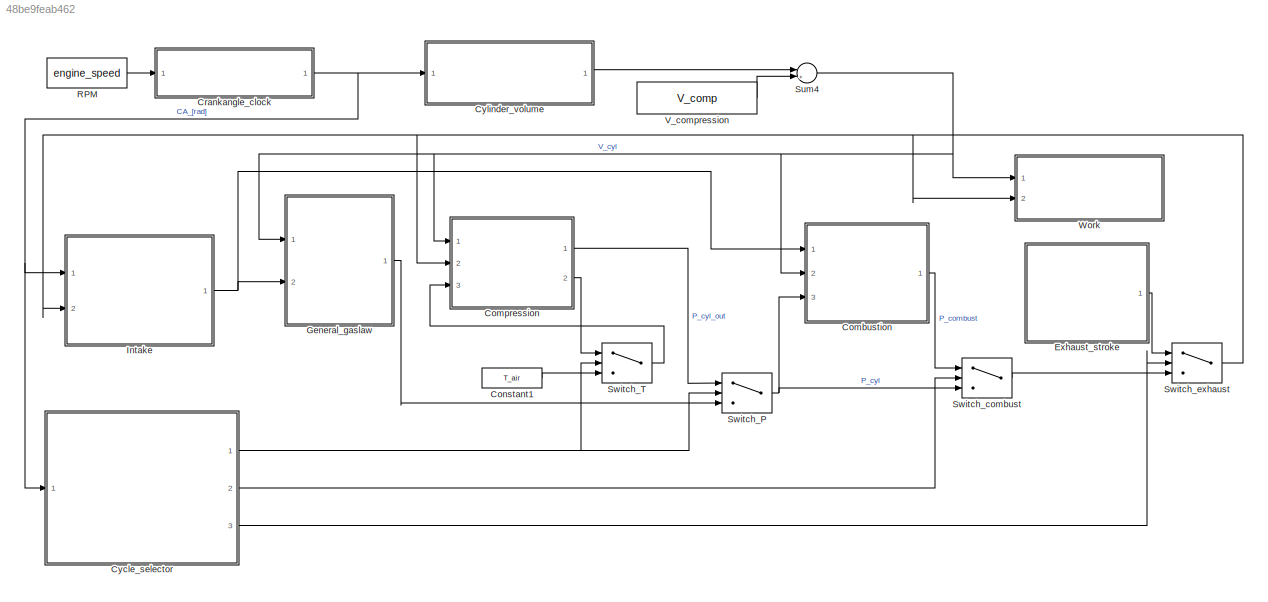
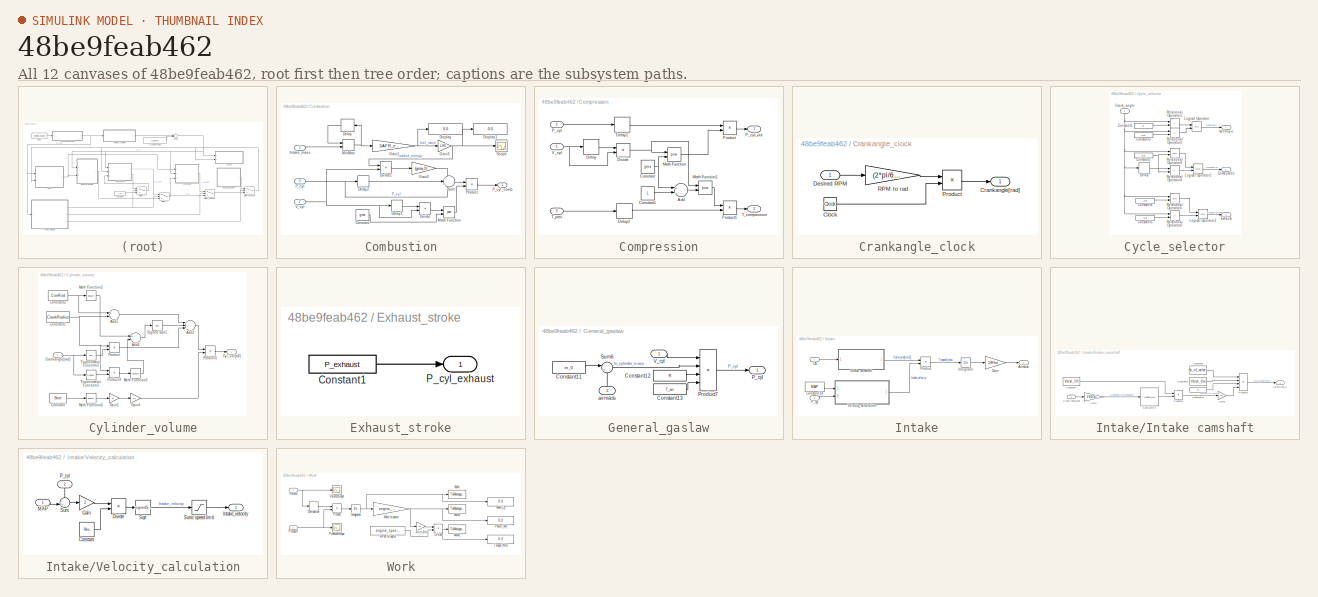
[diagram: thumbnail index - all 12 canvases of the model, root first then tree order]
MODEL slx_48be9feab462
KIND model
CONFIG AbsTol = auto
CONFIG FixedStep = stepsize
CONFIG MaxStep = auto
CONFIG MinStep = auto
CONFIG RelTol = 1e-3
CONFIG SampleTimeConstraint = Unconstrained
CONFIG Solver = ode3
CONFIG SolverMode = Auto
CONFIG SolverName = ode3
CONFIG StartTime = 0.0
CONFIG StopTime = 1*sim_time
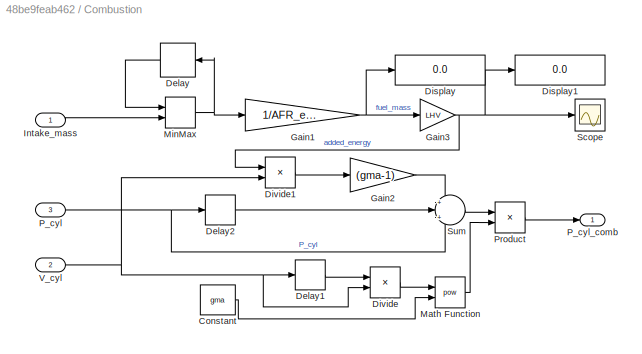
BLOCK [SubSystem] Combustion
  Ports = [3, 1]
  RequestExecContextInheritance = off
  Variant = off
BLOCK [Constant] Combustion/Constant
  Value = gma
BLOCK [Delay] Combustion/Delay
  DelayLength = 1
  InitialCondition = 0
  InputPortMap = u0
  Ports = [1, 1]
BLOCK [Delay] Combustion/Delay1
  DelayLength = 1
  InputPortMap = u0
  Ports = [1, 1]
BLOCK [Delay] Combustion/Delay2
  DelayLength = 1
  InputPortMap = u0
  Ports = [1, 1]
BLOCK [Display] Combustion/Display
  Decimation = 1
  Ports = [1]
BLOCK [Display] Combustion/Display1
  Decimation = 1
  Ports = [1]
BLOCK [Product] Combustion/Divide
  InputSameDT = off
  Inputs = */
  OutDataTypeStr = Inherit: Inherit via internal rule
  Ports = [2, 1]
  RndMeth = Floor
  SaturateOnIntegerOverflow = off
BLOCK [Product] Combustion/Divide1
  InputSameDT = off
  Inputs = */
  OutDataTypeStr = Inherit: Inherit via internal rule
  Ports = [2, 1]
  RndMeth = Floor
  SaturateOnIntegerOverflow = off
BLOCK [Gain] Combustion/Gain1
  Gain = 1/AFR_effective
  OutDataTypeStr = Inherit: Inherit via internal rule
  ParamDataTypeStr = Inherit: Inherit via internal rule
  SaturateOnIntegerOverflow = off
BLOCK [Gain] Combustion/Gain2
  Gain = (gma-1)
  OutDataTypeStr = Inherit: Inherit via internal rule
  ParamDataTypeStr = Inherit: Inherit via internal rule
  SaturateOnIntegerOverflow = off
BLOCK [Gain] Combustion/Gain3
  Gain = LHV
  OutDataTypeStr = Inherit: Inherit via internal rule
  ParamDataTypeStr = Inherit: Inherit via internal rule
  SaturateOnIntegerOverflow = off
BLOCK [Inport] Combustion/Intake_mass
  IconDisplay = Port number
BLOCK [Math] Combustion/Math Function
  Operator = pow
  Ports = [2, 1]
BLOCK [MinMax] Combustion/MinMax
  Function = max
  InputSameDT = off
  Inputs = 2
  Ports = [2, 1]
  SaturateOnIntegerOverflow = off
BLOCK [Inport] Combustion/P_cyl
  IconDisplay = Port number
  Port = 3
BLOCK [Outport] Combustion/P_cyl_comb
  IconDisplay = Port number
BLOCK [Product] Combustion/Product
  InputSameDT = off
  OutDataTypeStr = Inherit: Inherit via internal rule
  Ports = [2, 1]
  RndMeth = Floor
  SaturateOnIntegerOverflow = off
BLOCK [Scope] Combustion/Scope
  Ports = [1]
  ScopeSpecificationString = Simulink.scopes.TimeScopeBlockCfg('CurrentConfiguration', extmgr.ConfigurationSet(extmgr.Configuration('Core','General UI',true),extmgr.Configuration('Core','Source UI',true),extmgr.Configuration('Sources','WiredSimulink',true,'DataLoggingVariableName','added_energy','DataLogging',true,'DataLoggingLimitDataPoints',true,'DataLoggingMaxPoints','1','DataLoggingSaveFormat','Array'),extmgr.Configuratio...<+1487ch>
BLOCK [Sum] Combustion/Sum
  IconShape = round
  InputSameDT = off
  Inputs = +|+|-
  OutDataTypeStr = Inherit: Inherit via internal rule
  Ports = [3, 1]
  SaturateOnIntegerOverflow = off
BLOCK [Inport] Combustion/V_cyl
  IconDisplay = Port number
  Port = 2
BLOCK [SubSystem] Compression
  Ports = [3, 2]
  RequestExecContextInheritance = off
  Variant = off
BLOCK [Sum] Compression/Add
  InputSameDT = off
  Inputs = +-
  OutDataTypeStr = Inherit: Inherit via internal rule
  Ports = [2, 1]
  SaturateOnIntegerOverflow = off
BLOCK [Constant] Compression/Constant
  Value = gma
BLOCK [Constant] Compression/Constant1
BLOCK [Delay] Compression/Delay
  DelayLength = 1
  InitialCondition = 0
  InputPortMap = u0
  Ports = [1, 1]
BLOCK [Delay] Compression/Delay1
  DelayLength = 1
  InputPortMap = u0
  Ports = [1, 1]
BLOCK [Delay] Compression/Delay2
  DelayLength = 1
  InputPortMap = u0
  Ports = [1, 1]
BLOCK [Product] Compression/Divide
  InputSameDT = off
  Inputs = */
  OutDataTypeStr = Inherit: Inherit via internal rule
  Ports = [2, 1]
  RndMeth = Floor
  SaturateOnIntegerOverflow = off
BLOCK [Math] Compression/Math Function
  Operator = pow
  Ports = [2, 1]
BLOCK [Math] Compression/Math Function1
  Operator = pow
  Ports = [2, 1]
BLOCK [Inport] Compression/P_cyl
  IconDisplay = Port number
  Port = 2
BLOCK [Outport] Compression/P_cyl_out
  IconDisplay = Port number
BLOCK [Product] Compression/Product
  InputSameDT = off
  OutDataTypeStr = Inherit: Inherit via internal rule
  Ports = [2, 1]
  RndMeth = Floor
  SaturateOnIntegerOverflow = off
BLOCK [Product] Compression/Product1
  InputSameDT = off
  OutDataTypeStr = Inherit: Inherit via internal rule
  Ports = [2, 1]
  RndMeth = Floor
  SaturateOnIntegerOverflow = off
BLOCK [Outport] Compression/T_compression
  IconDisplay = Port number
  Port = 2
BLOCK [Inport] Compression/T_prev
  IconDisplay = Port number
  Port = 3
BLOCK [Inport] Compression/V_cyl
  IconDisplay = Port number
BLOCK [Constant] Constant1
  Value = T_air
BLOCK [SubSystem] Crankangle_clock
  Ports = [1, 1]
  RequestExecContextInheritance = off
  Variant = off
BLOCK [Clock] Crankangle_clock/Clock
BLOCK [Outport] Crankangle_clock/Crankangle[rad]
  IconDisplay = Port number
BLOCK [Inport] Crankangle_clock/Desired RPM
  IconDisplay = Port number
BLOCK [Product] Crankangle_clock/Product
  InputSameDT = off
  OutDataTypeStr = Inherit: Inherit via internal rule
  Ports = [2, 1]
  RndMeth = Floor
  SaturateOnIntegerOverflow = off
BLOCK [Gain] Crankangle_clock/RPM to rad
  Gain = (2*pi/60)
  OutDataTypeStr = Inherit: Inherit via internal rule
  ParamDataTypeStr = Inherit: Inherit via internal rule
  SaturateOnIntegerOverflow = off
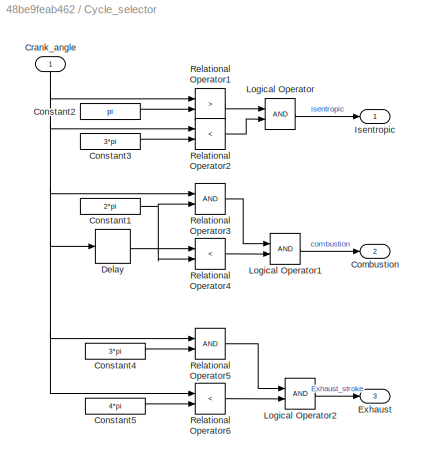
BLOCK [SubSystem] Cycle_selector
  Ports = [1, 3]
  RequestExecContextInheritance = off
  Variant = off
BLOCK [Outport] Cycle_selector/Combustion
  IconDisplay = Port number
  Port = 2
BLOCK [Constant] Cycle_selector/Constant1
  Value = 2*pi
BLOCK [Constant] Cycle_selector/Constant2
  Value = pi
BLOCK [Constant] Cycle_selector/Constant3
  Value = 3*pi
BLOCK [Constant] Cycle_selector/Constant4
  Value = 3*pi
BLOCK [Constant] Cycle_selector/Constant5
  Value = 4*pi
BLOCK [Inport] Cycle_selector/Crank_angle
  IconDisplay = Port number
BLOCK [Delay] Cycle_selector/Delay
  DelayLength = 1
  InitialCondition = P_0
  InputPortMap = u0
  Ports = [1, 1]
BLOCK [Outport] Cycle_selector/Exhaust
  IconDisplay = Port number
  Port = 3
BLOCK [Outport] Cycle_selector/Isentropic
  IconDisplay = Port number
BLOCK [Logic] Cycle_selector/Logical Operator
  AllPortsSameDT = off
  OutDataTypeStr = boolean
  Ports = [2, 1]
BLOCK [Logic] Cycle_selector/Logical Operator1
  AllPortsSameDT = off
  OutDataTypeStr = boolean
  Ports = [2, 1]
BLOCK [Logic] Cycle_selector/Logical Operator2
  AllPortsSameDT = off
  OutDataTypeStr = boolean
  Ports = [2, 1]
BLOCK [RelationalOperator] Cycle_selector/Relational Operator1
  InputSameDT = off
  Operator = >
  OutDataTypeStr = boolean
  Ports = [2, 1]
BLOCK [RelationalOperator] Cycle_selector/Relational Operator2
  InputSameDT = off
  Operator = <
  OutDataTypeStr = boolean
  Ports = [2, 1]
BLOCK [RelationalOperator] Cycle_selector/Relational Operator3
  InputSameDT = off
  OutDataTypeStr = boolean
  Ports = [2, 1]
BLOCK [RelationalOperator] Cycle_selector/Relational Operator4
  InputSameDT = off
  Operator = <
  OutDataTypeStr = boolean
  Ports = [2, 1]
BLOCK [RelationalOperator] Cycle_selector/Relational Operator5
  InputSameDT = off
  OutDataTypeStr = boolean
  Ports = [2, 1]
BLOCK [RelationalOperator] Cycle_selector/Relational Operator6
  InputSameDT = off
  Operator = <
  OutDataTypeStr = boolean
  Ports = [2, 1]
BLOCK [SubSystem] Cylinder_volume
  Ports = [1, 1]
  RequestExecContextInheritance = off
  Variant = off
BLOCK [Sum] Cylinder_volume/Add2
  InputSameDT = off
  Inputs = +--
  OutDataTypeStr = Inherit: Inherit via internal rule
  Ports = [3, 1]
  SaturateOnIntegerOverflow = off
BLOCK [Sum] Cylinder_volume/Add4
  InputSameDT = off
  Inputs = +-
  OutDataTypeStr = Inherit: Inherit via internal rule
  Ports = [2, 1]
  SaturateOnIntegerOverflow = off
BLOCK [Sum] Cylinder_volume/Add5
  InputSameDT = off
  OutDataTypeStr = Inherit: Inherit via internal rule
  Ports = [2, 1]
  SaturateOnIntegerOverflow = off
BLOCK [Constant] Cylinder_volume/Constant
  Value = Bore
BLOCK [Constant] Cylinder_volume/Constant1
  Value = CrankRadius
BLOCK [Constant] Cylinder_volume/Constant2
  Value = ConRod
BLOCK [Inport] Cylinder_volume/Crankangle[rad]
  IconDisplay = Port number
BLOCK [Outport] Cylinder_volume/Cyl_vol[m3]
  IconDisplay = Port number
BLOCK [Gain] Cylinder_volume/Gain4
  Gain = 1/4
  OutDataTypeStr = Inherit: Inherit via internal rule
  ParamDataTypeStr = Inherit: Inherit via internal rule
  SaturateOnIntegerOverflow = off
BLOCK [Gain] Cylinder_volume/Gain5
  Gain = pi
  OutDataTypeStr = Inherit: Inherit via internal rule
  ParamDataTypeStr = Inherit: Inherit via internal rule
  SaturateOnIntegerOverflow = off
BLOCK [Math] Cylinder_volume/Math Function2
  Operator = square
  Ports = [1, 1]
BLOCK [Math] Cylinder_volume/Math Function5
  Operator = square
  Ports = [1, 1]
BLOCK [Math] Cylinder_volume/Math Function6
  Operator = square
  Ports = [1, 1]
BLOCK [Product] Cylinder_volume/Product
  InputSameDT = off
  OutDataTypeStr = Inherit: Inherit via internal rule
  Ports = [2, 1]
  RndMeth = Floor
  SaturateOnIntegerOverflow = off
BLOCK [Product] Cylinder_volume/Product4
  InputSameDT = off
  OutDataTypeStr = Inherit: Inherit via internal rule
  Ports = [2, 1]
  RndMeth = Floor
  SaturateOnIntegerOverflow = off
BLOCK [Product] Cylinder_volume/Product5
  InputSameDT = off
  OutDataTypeStr = Inherit: Inherit via internal rule
  Ports = [2, 1]
  RndMeth = Floor
  SaturateOnIntegerOverflow = off
BLOCK [Sqrt] Cylinder_volume/Signed Sqrt1
BLOCK [Trigonometry] Cylinder_volume/Trigonometric Function2
  Operator = cos
  Ports = [1, 1]
BLOCK [Trigonometry] Cylinder_volume/Trigonometric Function3
  Ports = [1, 1]
BLOCK [SubSystem] Exhaust_stroke
  Ports = [0, 1]
  RequestExecContextInheritance = off
  Variant = off
BLOCK [Constant] Exhaust_stroke/Constant1
  Value = P_exhaust
BLOCK [Outport] Exhaust_stroke/P_cyl_exhaust
  IconDisplay = Port number
BLOCK [SubSystem] General_gaslaw
  Ports = [2, 1]
  RequestExecContextInheritance = off
  Variant = off
BLOCK [Constant] General_gaslaw/Constant11
  Value = m_0
BLOCK [Constant] General_gaslaw/Constant12
  Value = R
BLOCK [Constant] General_gaslaw/Constant13
  Value = T_air
BLOCK [Outport] General_gaslaw/P_cyl
  IconDisplay = Port number
BLOCK [Product] General_gaslaw/Product7
  InputSameDT = off
  Inputs = /***
  OutDataTypeStr = Inherit: Inherit via internal rule
  Ports = [4, 1]
  SaturateOnIntegerOverflow = off
BLOCK [Sum] General_gaslaw/Sum6
  IconShape = round
  InputSameDT = off
  Inputs = |++
  OutDataTypeStr = Inherit: Inherit via internal rule
  Ports = [2, 1]
  SaturateOnIntegerOverflow = off
BLOCK [Inport] General_gaslaw/V_cyl
  IconDisplay = Port number
BLOCK [Inport] General_gaslaw/airmass
  IconDisplay = Port number
  Port = 2
BLOCK [SubSystem] Intake
  Ports = [2, 1]
  RequestExecContextInheritance = off
  Variant = off
BLOCK [Outport] Intake/Airmass
  IconDisplay = Port number
BLOCK [Inport] Intake/CA
  IconDisplay = Port number
BLOCK [Constant] Intake/Constant14
  Value = MAP
BLOCK [Gain] Intake/Gain
  Gain = 1/Rho
  OutDataTypeStr = Inherit: Inherit via internal rule
  ParamDataTypeStr = Inherit: Inherit via internal rule
  SaturateOnIntegerOverflow = off
BLOCK [SubSystem] Intake/Intake camshaft
  Ports = [1, 1]
  RequestExecContextInheritance = off
  Variant = off
BLOCK [Lookup_n-D] Intake/Intake camshaft/Cam_profile
  BreakpointsForDimension1 = [0,10,20,30,40,50,60,70,80,90,100,110,120,130,140,150,160,170,180,190,200,210]
  ExtrapMethod = Clip
  NumberOfTableDimensions = 1
  Ports = [1, 1]
  RndMeth = Simplest
  Table = [0,0.05,0.1,0.2,0.3,0.5,0.65,0.8,0.9,0.95,1,1,0.95,0.9,0.8,0.65,0.5,0.3,0.2,0.1,0.05,0]
  UseLastTableValue = on
BLOCK [Constant] Intake/Intake camshaft/Constant10
  Value = pi
BLOCK [Constant] Intake/Intake camshaft/Constant7
  Value = Valve_lift
BLOCK [Constant] Intake/Intake camshaft/Constant8
  Value = Nr_of_valves
BLOCK [Constant] Intake/Intake camshaft/Constant9
  Value = Valve_dia
BLOCK [Inport] Intake/Intake camshaft/CrankAngle[rad]
  IconDisplay = Port number
BLOCK [Gain] Intake/Intake camshaft/Gain
  Gain = 180/pi
  OutDataTypeStr = Inherit: Inherit via internal rule
  ParamDataTypeStr = Inherit: Inherit via internal rule
  SaturateOnIntegerOverflow = off
BLOCK [Gain] Intake/Intake camshaft/Gain2
  Gain = Cd
  OutDataTypeStr = Inherit: Inherit via internal rule
  ParamDataTypeStr = Inherit: Inherit via internal rule
  SaturateOnIntegerOverflow = off
BLOCK [Product] Intake/Intake camshaft/Product5
  InputSameDT = off
  OutDataTypeStr = Inherit: Inherit via internal rule
  Ports = [2, 1]
  SaturateOnIntegerOverflow = off
BLOCK [Product] Intake/Intake camshaft/Product6
  InputSameDT = off
  Inputs = 4
  OutDataTypeStr = Inherit: Inherit via internal rule
  Ports = [4, 1]
  SaturateOnIntegerOverflow = off
BLOCK [Outport] Intake/Intake camshaft/ValveArea_In
  IconDisplay = Port number
BLOCK [Integrator] Intake/Integrator
  Ports = [1, 1]
BLOCK [Inport] Intake/P_cyl
  IconDisplay = Port number
  Port = 2
BLOCK [Product] Intake/Product
  InputSameDT = off
  OutDataTypeStr = Inherit: Inherit via internal rule
  Ports = [2, 1]
  RndMeth = Floor
  SaturateOnIntegerOverflow = off
BLOCK [SubSystem] Intake/Velocity_calculation
  Ports = [2, 1]
  RequestExecContextInheritance = off
  Variant = off
BLOCK [Constant] Intake/Velocity_calculation/Constant
  Value = Rho
BLOCK [Product] Intake/Velocity_calculation/Divide
  InputSameDT = off
  Inputs = */
  OutDataTypeStr = Inherit: Inherit via internal rule
  Ports = [2, 1]
  RndMeth = Floor
  SaturateOnIntegerOverflow = off
BLOCK [Gain] Intake/Velocity_calculation/Gain
  Gain = 2
  OutDataTypeStr = Inherit: Inherit via internal rule
  ParamDataTypeStr = Inherit: Inherit via internal rule
  SaturateOnIntegerOverflow = off
BLOCK [Outport] Intake/Velocity_calculation/Intake_velocity
  IconDisplay = Port number
BLOCK [Inport] Intake/Velocity_calculation/MAP
  IconDisplay = Port number
BLOCK [Inport] Intake/Velocity_calculation/P_cyl
  IconDisplay = Port number
  Port = 2
BLOCK [Saturate] Intake/Velocity_calculation/Sonic speed limit
  InputPortMap = u0
  LowerLimit = -V_sonic
  Ports = [1, 1]
  UpperLimit = V_sonic
BLOCK [Sqrt] Intake/Velocity_calculation/Sqrt
  Operator = signedSqrt
BLOCK [Sum] Intake/Velocity_calculation/Sum
  IconShape = round
  InputSameDT = off
  Inputs = -+|
  OutDataTypeStr = Inherit: Inherit via internal rule
  Ports = [2, 1]
  SaturateOnIntegerOverflow = off
BLOCK [Constant] RPM
  Value = engine_speed
BLOCK [Sum] Sum4
  IconShape = round
  InputSameDT = off
  Inputs = |++
  OutDataTypeStr = Inherit: Inherit via internal rule
  Ports = [2, 1]
  SaturateOnIntegerOverflow = off
BLOCK [Switch] Switch_P
  Criteria = u2 > Threshold
  InputSameDT = off
  SaturateOnIntegerOverflow = off
BLOCK [Switch] Switch_T
  Criteria = u2 > Threshold
  InputSameDT = off
  SaturateOnIntegerOverflow = off
BLOCK [Switch] Switch_combust
  Criteria = u2 > Threshold
  InputSameDT = off
  SaturateOnIntegerOverflow = off
BLOCK [Switch] Switch_exhaust
  Criteria = u2 > Threshold
  InputSameDT = off
  SaturateOnIntegerOverflow = off
BLOCK [Constant] V_compression
  Value = V_comp
BLOCK [SubSystem] Work
  Ports = [2]
  RequestExecContextInheritance = off
  Variant = off
BLOCK [Derivative] Work/Derivative
BLOCK [Product] Work/Divide
  InputSameDT = off
  Inputs = */
  OutDataTypeStr = Inherit: Inherit via internal rule
  Ports = [2, 1]
  RndMeth = Floor
  SaturateOnIntegerOverflow = off
BLOCK [Integrator] Work/Integrator
  Ports = [1, 1]
BLOCK [Gain] Work/J//s to J//m
  Gain = 60
  OutDataTypeStr = Inherit: Inherit via internal rule
  ParamDataTypeStr = Inherit: Inherit via internal rule
  SaturateOnIntegerOverflow = off
BLOCK [Display] Work/Power [W]
  Decimation = 1
  Ports = [1]
BLOCK [Inport] Work/Pressure
  IconDisplay = Port number
  Port = 2
BLOCK [Scope] Work/PressureScope
  Ports = [1]
  ScopeSpecificationString = Simulink.scopes.TimeScopeBlockCfg('CurrentConfiguration', extmgr.ConfigurationSet(extmgr.Configuration('Core','General UI',true),extmgr.Configuration('Core','Source UI',true),extmgr.Configuration('Sources','WiredSimulink',true,'DataLoggingVariableName','Pressure','DataLogging',true,'DataLoggingSaveFormat','Array'),extmgr.Configuration('Visuals','Time Domain',true,'SerializedDisplays',{struct('MinY...<+1458ch>
BLOCK [Product] Work/Product
  InputSameDT = off
  OutDataTypeStr = Inherit: Inherit via internal rule
  Ports = [2, 1]
  RndMeth = Floor
  SaturateOnIntegerOverflow = off
BLOCK [Constant] Work/RPM to rad//m
  Value = engine_speed*2*pi
BLOCK [Display] Work/Torque [Nm]
  Decimation = 1
  Ports = [1]
BLOCK [Inport] Work/Volume
  IconDisplay = Port number
BLOCK [Scope] Work/VolumeScope
  Ports = [1]
  ScopeSpecificationString = Simulink.scopes.TimeScopeBlockCfg('CurrentConfiguration', extmgr.ConfigurationSet(extmgr.Configuration('Core','General UI',true),extmgr.Configuration('Core','Source UI',true),extmgr.Configuration('Sources','WiredSimulink',true,'DataLoggingVariableName','Volume','DataLogging',true,'DataLoggingSaveFormat','Array'),extmgr.Configuration('Visuals','Time Domain',true,'SerializedDisplays',{struct('MinYLi...<+1412ch>
BLOCK [ToWorkspace] Work/Work
  FixptAsFi = on
  MaxDataPoints = 1
  Ports = [1]
  SampleTime = -1
  Save2DSignal = 3-D array (concatenate along third dimension)
  VariableName = Work
BLOCK [Display] Work/Work [J]
  Decimation = 1
  Ports = [1]
BLOCK [Gain] Work/Work to power
  Gain = engine_speed/(2*60)
  OutDataTypeStr = Inherit: Inherit via internal rule
  ParamDataTypeStr = Inherit: Inherit via internal rule
  SaturateOnIntegerOverflow = off
BLOCK [ToWorkspace] Work/Work1
  FixptAsFi = on
  MaxDataPoints = 1
  Ports = [1]
  SampleTime = -1
  Save2DSignal = 3-D array (concatenate along third dimension)
  VariableName = Power
BLOCK [ToWorkspace] Work/Work2
  FixptAsFi = on
  MaxDataPoints = 1
  Ports = [1]
  SampleTime = -1
  Save2DSignal = 3-D array (concatenate along third dimension)
  VariableName = Torque
LINE Combustion/Constant:1 -> Combustion/Math Function:2
LINE Combustion/Delay1:1 -> Combustion/Divide:1
LINE Combustion/Delay2:1 -> Combustion/Sum:2
LINE Combustion/Delay:1 -> Combustion/MinMax:1
LINE Combustion/Divide1:1 -> Combustion/Gain2:1
LINE Combustion/Divide:1 -> Combustion/Math Function:1
NET Combustion/Gain1:1 -> Combustion/Display:1, Combustion/Gain3:1
LINE Combustion/Gain2:1 -> Combustion/Sum:1
NET Combustion/Gain3:1 -> Combustion/Display1:1, Combustion/Divide1:1, Combustion/Scope:1
LINE Combustion/Intake_mass:1 -> Combustion/MinMax:2
LINE Combustion/Math Function:1 -> Combustion/Product:2
NET Combustion/MinMax:1 -> Combustion/Delay:1, Combustion/Gain1:1
NET Combustion/P_cyl:1 -> Combustion/Delay2:1, Combustion/Sum:3
LINE Combustion/Product:1 -> Combustion/P_cyl_comb:1
LINE Combustion/Sum:1 -> Combustion/Product:1
NET Combustion/V_cyl:1 -> Combustion/Delay1:1, Combustion/Divide1:2, Combustion/Divide:2
LINE Combustion:1 -> Switch_combust:1
LINE Compression/Add:1 -> Compression/Math Function1:2
LINE Compression/Constant1:1 -> Compression/Add:2
NET Compression/Constant:1 -> Compression/Add:1, Compression/Math Function:2
LINE Compression/Delay1:1 -> Compression/Product:1
LINE Compression/Delay2:1 -> Compression/Product1:2
LINE Compression/Delay:1 -> Compression/Divide:1
NET Compression/Divide:1 -> Compression/Math Function1:1, Compression/Math Function:1
LINE Compression/Math Function1:1 -> Compression/Product1:1
LINE Compression/Math Function:1 -> Compression/Product:2
LINE Compression/P_cyl:1 -> Compression/Delay1:1
LINE Compression/Product1:1 -> Compression/T_compression:1
LINE Compression/Product:1 -> Compression/P_cyl_out:1
LINE Compression/T_prev:1 -> Compression/Delay2:1
NET Compression/V_cyl:1 -> Compression/Delay:1, Compression/Divide:2
LINE Compression:1 -> Switch_P:1
LINE Compression:2 -> Switch_T:1
LINE Constant1:1 -> Switch_T:3
LINE Crankangle_clock/Clock:1 -> Crankangle_clock/Product:2
LINE Crankangle_clock/Desired RPM:1 -> Crankangle_clock/RPM to rad:1
LINE Crankangle_clock/Product:1 -> Crankangle_clock/Crankangle[rad]:1
LINE Crankangle_clock/RPM to rad:1 -> Crankangle_clock/Product:1
NET Crankangle_clock:1 -> Cycle_selector:1, Cylinder_volume:1, Intake:1
NET Cycle_selector/Constant1:1 -> Cycle_selector/Relational Operator3:2, Cycle_selector/Relational Operator4:2
LINE Cycle_selector/Constant2:1 -> Cycle_selector/Relational Operator1:2
LINE Cycle_selector/Constant3:1 -> Cycle_selector/Relational Operator2:2
LINE Cycle_selector/Constant4:1 -> Cycle_selector/Relational Operator5:2
LINE Cycle_selector/Constant5:1 -> Cycle_selector/Relational Operator6:2
NET Cycle_selector/Crank_angle:1 -> Cycle_selector/Delay:1, Cycle_selector/Relational Operator1:1, Cycle_selector/Relational Operator2:1, Cycle_selector/Relational Operator3:1, Cycle_selector/Relational Operator5:1, Cycle_selector/Relational Operator6:1
LINE Cycle_selector/Delay:1 -> Cycle_selector/Relational Operator4:1
LINE Cycle_selector/Logical Operator1:1 -> Cycle_selector/Combustion:1
LINE Cycle_selector/Logical Operator2:1 -> Cycle_selector/Exhaust:1
LINE Cycle_selector/Logical Operator:1 -> Cycle_selector/Isentropic:1
LINE Cycle_selector/Relational Operator1:1 -> Cycle_selector/Logical Operator:1
LINE Cycle_selector/Relational Operator2:1 -> Cycle_selector/Logical Operator:2
LINE Cycle_selector/Relational Operator3:1 -> Cycle_selector/Logical Operator1:1
LINE Cycle_selector/Relational Operator4:1 -> Cycle_selector/Logical Operator1:2
LINE Cycle_selector/Relational Operator5:1 -> Cycle_selector/Logical Operator2:1
LINE Cycle_selector/Relational Operator6:1 -> Cycle_selector/Logical Operator2:2
NET Cycle_selector:1 -> Switch_P:2, Switch_T:2
LINE Cycle_selector:2 -> Switch_combust:2
LINE Cycle_selector:3 -> Switch_exhaust:2
LINE Cylinder_volume/Add2:1 -> Cylinder_volume/Product5:1
LINE Cylinder_volume/Add4:1 -> Cylinder_volume/Signed Sqrt1:1
LINE Cylinder_volume/Add5:1 -> Cylinder_volume/Add2:1
NET Cylinder_volume/Constant1:1 -> Cylinder_volume/Add5:2, Cylinder_volume/Product4:1, Cylinder_volume/Product:1
NET Cylinder_volume/Constant2:1 -> Cylinder_volume/Add5:1, Cylinder_volume/Math Function2:1
LINE Cylinder_volume/Constant:1 -> Cylinder_volume/Math Function6:1
NET Cylinder_volume/Crankangle[rad]:1 -> Cylinder_volume/Trigonometric Function2:1, Cylinder_volume/Trigonometric Function3:1
LINE Cylinder_volume/Gain4:1 -> Cylinder_volume/Product5:2
LINE Cylinder_volume/Gain5:1 -> Cylinder_volume/Gain4:1
LINE Cylinder_volume/Math Function2:1 -> Cylinder_volume/Add4:1
LINE Cylinder_volume/Math Function5:1 -> Cylinder_volume/Add4:2
LINE Cylinder_volume/Math Function6:1 -> Cylinder_volume/Gain5:1
LINE Cylinder_volume/Product4:1 -> Cylinder_volume/Math Function5:1
LINE Cylinder_volume/Product5:1 -> Cylinder_volume/Cyl_vol[m3]:1
LINE Cylinder_volume/Product:1 -> Cylinder_volume/Add2:3
LINE Cylinder_volume/Signed Sqrt1:1 -> Cylinder_volume/Add2:2
LINE Cylinder_volume/Trigonometric Function2:1 -> Cylinder_volume/Product:2
LINE Cylinder_volume/Trigonometric Function3:1 -> Cylinder_volume/Product4:2
LINE Cylinder_volume:1 -> Sum4:1
LINE Exhaust_stroke/Constant1:1 -> Exhaust_stroke/P_cyl_exhaust:1
LINE Exhaust_stroke:1 -> Switch_exhaust:1
LINE General_gaslaw/Constant11:1 -> General_gaslaw/Sum6:1
LINE General_gaslaw/Constant12:1 -> General_gaslaw/Product7:3
LINE General_gaslaw/Constant13:1 -> General_gaslaw/Product7:4
LINE General_gaslaw/Product7:1 -> General_gaslaw/P_cyl:1
LINE General_gaslaw/Sum6:1 -> General_gaslaw/Product7:2
LINE General_gaslaw/V_cyl:1 -> General_gaslaw/Product7:1
LINE General_gaslaw/airmass:1 -> General_gaslaw/Sum6:2
LINE General_gaslaw:1 -> Switch_P:3
LINE Intake/CA:1 -> Intake/Intake camshaft:1
LINE Intake/Constant14:1 -> Intake/Velocity_calculation:1
LINE Intake/Gain:1 -> Intake/Airmass:1
LINE Intake/Intake camshaft/Cam_profile:1 -> Intake/Intake camshaft/Product5:2
LINE Intake/Intake camshaft/Constant10:1 -> Intake/Intake camshaft/Product6:3
LINE Intake/Intake camshaft/Constant7:1 -> Intake/Intake camshaft/Product5:1
LINE Intake/Intake camshaft/Constant8:1 -> Intake/Intake camshaft/Product6:1
LINE Intake/Intake camshaft/Constant9:1 -> Intake/Intake camshaft/Product6:2
LINE Intake/Intake camshaft/CrankAngle[rad]:1 -> Intake/Intake camshaft/Gain:1
LINE Intake/Intake camshaft/Gain2:1 -> Intake/Intake camshaft/Product6:4
LINE Intake/Intake camshaft/Gain:1 -> Intake/Intake camshaft/Cam_profile:1
LINE Intake/Intake camshaft/Product5:1 -> Intake/Intake camshaft/Gain2:1
LINE Intake/Intake camshaft/Product6:1 -> Intake/Intake camshaft/ValveArea_In:1
LINE Intake/Intake camshaft:1 -> Intake/Product:1
LINE Intake/Integrator:1 -> Intake/Gain:1
LINE Intake/P_cyl:1 -> Intake/Velocity_calculation:2
LINE Intake/Product:1 -> Intake/Integrator:1
LINE Intake/Velocity_calculation/Constant:1 -> Intake/Velocity_calculation/Divide:2
LINE Intake/Velocity_calculation/Divide:1 -> Intake/Velocity_calculation/Sqrt:1
LINE Intake/Velocity_calculation/Gain:1 -> Intake/Velocity_calculation/Divide:1
LINE Intake/Velocity_calculation/MAP:1 -> Intake/Velocity_calculation/Sum:2
LINE Intake/Velocity_calculation/P_cyl:1 -> Intake/Velocity_calculation/Sum:1
LINE Intake/Velocity_calculation/Sonic speed limit:1 -> Intake/Velocity_calculation/Intake_velocity:1
LINE Intake/Velocity_calculation/Sqrt:1 -> Intake/Velocity_calculation/Sonic speed limit:1
LINE Intake/Velocity_calculation/Sum:1 -> Intake/Velocity_calculation/Gain:1
LINE Intake/Velocity_calculation:1 -> Intake/Product:2
NET Intake:1 -> Combustion:1, General_gaslaw:2
LINE RPM:1 -> Crankangle_clock:1
NET Sum4:1 -> Combustion:2, Compression:1, General_gaslaw:1, Work:1
NET Switch_P:1 -> Combustion:3, Switch_combust:3
LINE Switch_T:1 -> Compression:3
LINE Switch_combust:1 -> Switch_exhaust:3
NET Switch_exhaust:1 -> Compression:2, Intake:2, Work:2
LINE V_compression:1 -> Sum4:2
LINE Work/Derivative:1 -> Work/Product:1
NET Work/Divide:1 -> Work/Torque [Nm]:1, Work/Work2:1
NET Work/Integrator:1 -> Work/Work [J]:1, Work/Work to power:1, Work/Work:1
LINE Work/J//s to J//m:1 -> Work/Divide:1
NET Work/Pressure:1 -> Work/PressureScope:1, Work/Product:2
LINE Work/Product:1 -> Work/Integrator:1
LINE Work/RPM to rad//m:1 -> Work/Divide:2
NET Work/Volume:1 -> Work/Derivative:1, Work/VolumeScope:1
NET Work/Work to power:1 -> Work/J//s to J//m:1, Work/Power [W]:1, Work/Work1:1
note: NET lines group one-source signal fan-out (src -> all destinations, sorted); 1:1 wires keep LINE
